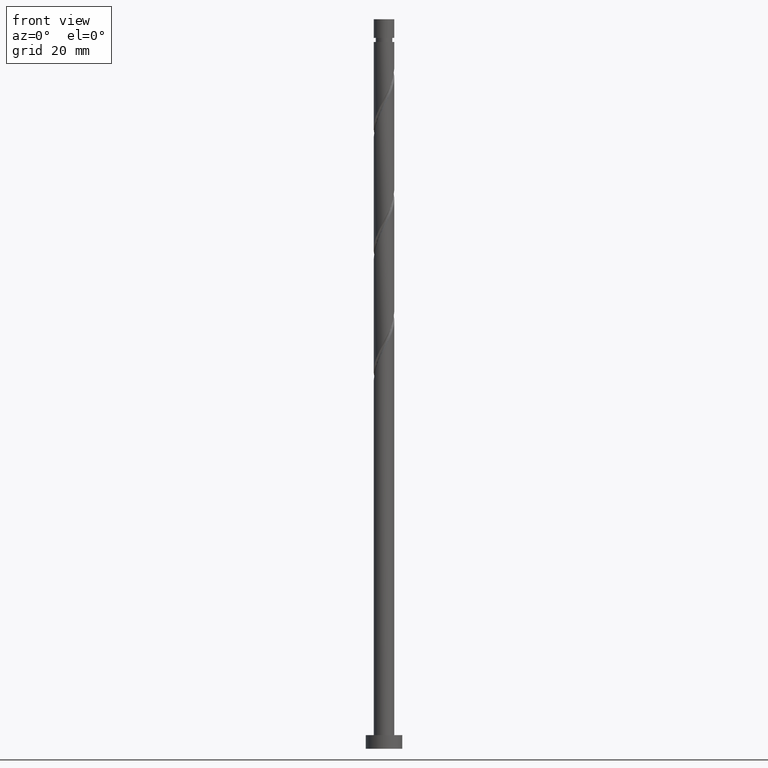
[diagram: clean part render]
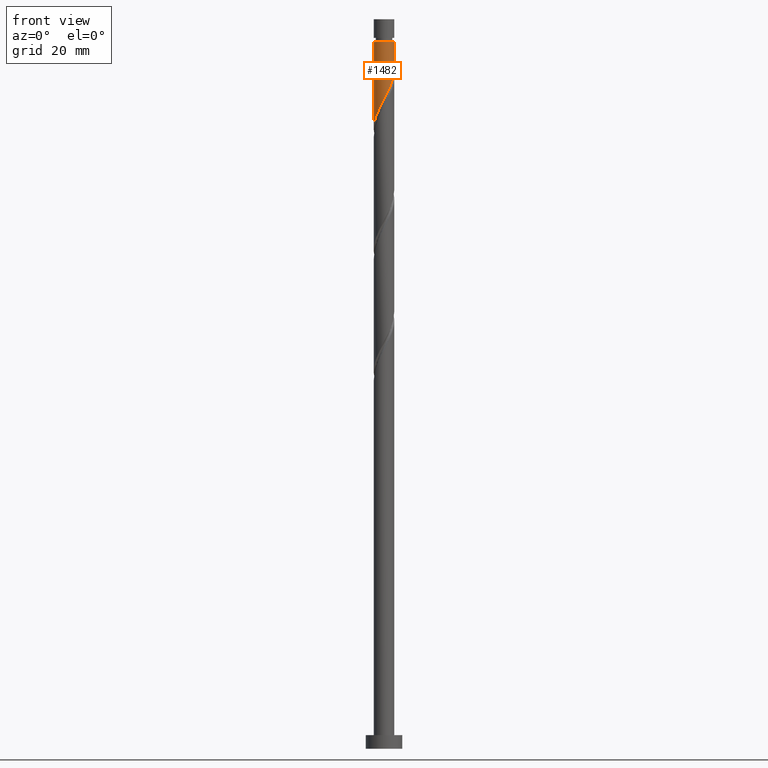
[diagram: same view with one face highlighted and labeled with its STEP entity id]
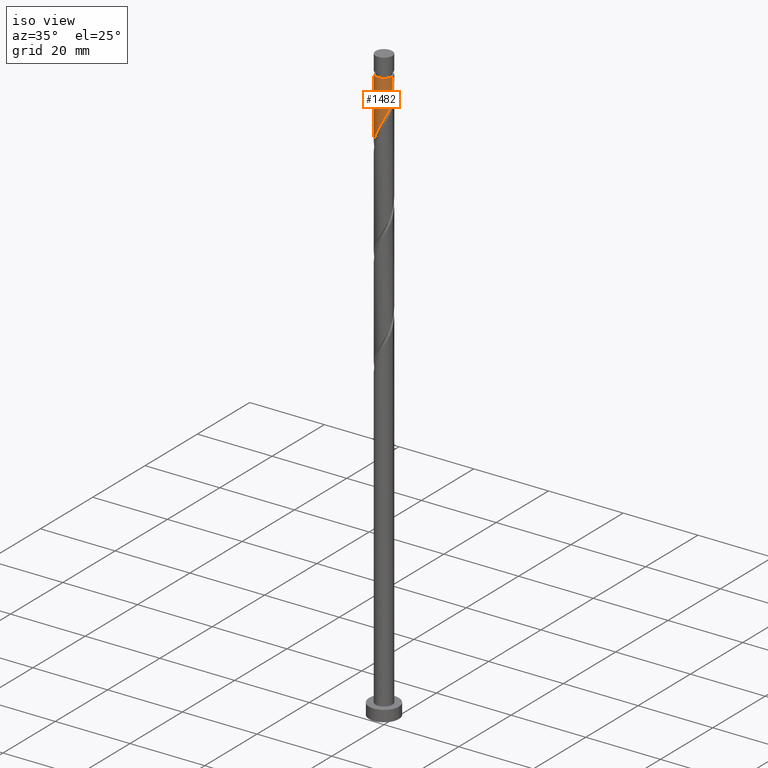
[diagram: same view with one face highlighted and labeled with its STEP entity id]
A machine part, front view. The second image highlights one B-rep face of the part: STEP entity #1482.
A second angle (iso view) of the same face is appended — the face is thin or edge-on in the first view.
In plain terms, the highlighted cylindrical surface (edge-blend (fillet) strip) has radius 2.25 mm, axis along (-0, -0, -1).
Its self-contained STEP definition (entity closure, byte-faithful):
#37 = CARTESIAN_POINT ( 'NONE',  ( 2.009996715602341943, -1.061633743224248194, 147.1307894824780362 ) ) ;
#42 = FACE_OUTER_BOUND ( 'NONE', #77, .T. ) ;
#50 = AXIS2_PLACEMENT_3D ( 'NONE', #424, #411, #930 ) ;
#71 = CARTESIAN_POINT ( 'NONE',  ( -1.050827842467677353, -1.989537847213448618, 140.4641228158113506 ) ) ;
#77 = EDGE_LOOP ( 'NONE', ( #1571, #620, #752, #599 ) ) ;
#103 = VERTEX_POINT ( 'NONE', #899 ) ;
#148 = CARTESIAN_POINT ( 'NONE',  ( 2.246276943635557188, -0.1293827364500373389, 148.9489713006598208 ) ) ;
#179 = DIRECTION ( 'NONE',  ( -0.000000000000000000, -0.000000000000000000, -1.000000000000000000 ) ) ;
#192 = CARTESIAN_POINT ( 'NONE',  ( -0.4477443466979799114, -2.204999999999999183, 141.6762440279325688 ) ) ;
#210 = CARTESIAN_POINT ( 'NONE',  ( -2.249999999999992450, 0.000000000000000000, 155.0095773612659116 ) ) ;
#213 = CIRCLE ( 'NONE', #50, 2.249999999999992450 ) ;
#219 = CARTESIAN_POINT ( 'NONE',  ( -2.250000000000000000, 1.189067245927961296E-14, 135.8590318405667858 ) ) ;
#247 = EDGE_CURVE ( 'NONE', #103, #526, #1304, .T. ) ;
#279 = CARTESIAN_POINT ( 'NONE',  ( 0.1916127332030267694, -2.241826166426483358, 142.8883652400537585 ) ) ;
#307 = DIRECTION ( 'NONE',  ( -0.000000000000000000, -0.000000000000000000, -1.000000000000000000 ) ) ;
#311 = CARTESIAN_POINT ( 'NONE',  ( -0.7647754849568959568, -2.140624081685869928, 141.0701834218720023 ) ) ;
#349 = EDGE_CURVE ( 'NONE', #1119, #1326, #1545, .T. ) ;
#403 = CARTESIAN_POINT ( 'NONE',  ( 0.8154464890247279385, -2.097032909502672737, 144.1004864521750051 ) ) ;
#411 = DIRECTION ( 'NONE',  ( -0.000000000000000000, -0.000000000000000000, -1.000000000000000000 ) ) ;
#424 = CARTESIAN_POINT ( 'NONE',  ( 0.000000000000000000, 0.000000000000000000, 155.0095773612659116 ) ) ;
#425 = CARTESIAN_POINT ( 'NONE',  ( 2.249999999999999556, -0.06474493467860559237, 149.0702671691819035 ) ) ;
#517 =( BOUNDED_CURVE ( )  B_SPLINE_CURVE ( 2, ( #694, #425, #148, #1561, #662, #37, #1165, #524, #1032, #1550, #403, #914, #279, #1308, #192, #311, #71, #575, #1201, #1601, #1358, #1224, #1607, #1502, #219 ),
 .UNSPECIFIED., .F., .T. ) 
 B_SPLINE_CURVE_WITH_KNOTS ( ( 3, 2, 2, 2, 2, 2, 2, 2, 2, 2, 2, 2, 3 ),
 ( 0.3045252162417514952, 0.3068181818181818232, 0.3181818181818181768, 0.3295454545454545303, 0.3409090909090908839, 0.3522727272727272929, 0.3636363636363636465, 0.3750000000000000000, 0.3863636363636363535, 0.3977272727272727071, 0.4090909090909091161, 0.4204545454545454697, 0.4295252162417517172 ),
 .UNSPECIFIED. ) 
 CURVE ( )  GEOMETRIC_REPRESENTATION_ITEM ( )  RATIONAL_B_SPLINE_CURVE ( ( 0.9061101570135630112, 0.9072237824201451195, 0.9090909090909224943, 0.8998376744372248437, 0.9090909090909224943, 0.8998376744372248437, 0.9090909090909224943, 0.8998376744372248437, 0.9090909090909224943, 0.8998376744372248437, 0.9090909090909224943, 0.8998376744372248437, 0.9090909090909224943, 0.8998376744372248437, 0.9090909090909224943, 0.8998376744372248437, 0.9090909090909224943, 0.8998376744372248437, 0.9090909090909224943, 0.8998376744372248437, 0.9090909090909224943, 0.8998376744372248437, 0.9090909090909224943, 0.9017048011080019965, 0.9061101570135632333 ) ) 
 REPRESENTATION_ITEM ( '' )  );
#524 = CARTESIAN_POINT ( 'NONE',  ( 1.629480936700959948, -1.584911631105247576, 145.9186682703567612 ) ) ;
#526 = VERTEX_POINT ( 'NONE', #1476 ) ;
#559 = CARTESIAN_POINT ( 'NONE',  ( 0.000000000000000000, 0.000000000000000000, 160.0000000000000000 ) ) ;
#575 = CARTESIAN_POINT ( 'NONE',  ( -1.336880199978459194, -1.838451612741027974, 139.8580622097507558 ) ) ;
#599 = ORIENTED_EDGE ( 'NONE', *, *, #849, .F. ) ;
#620 = ORIENTED_EDGE ( 'NONE', *, *, #1415, .T. ) ;
#662 = CARTESIAN_POINT ( 'NONE',  ( 2.118835615059355693, -0.7569911732352242462, 147.7368500885386879 ) ) ;
#694 = CARTESIAN_POINT ( 'NONE',  ( 2.250000000000000000, 2.393091312559419924E-16, 149.1923651739000718 ) ) ;
#752 = ORIENTED_EDGE ( 'NONE', *, *, #349, .T. ) ;
#785 = CARTESIAN_POINT ( 'NONE',  ( -2.250000000000000000, 1.189067245927961296E-14, 135.8590318405667858 ) ) ;
#817 = DIRECTION ( 'NONE',  ( -1.000000000000000000, 0.000000000000000000, 0.000000000000000000 ) ) ;
#835 = VECTOR ( 'NONE', #307, 1000.000000000000000 ) ;
#849 = EDGE_CURVE ( 'NONE', #526, #1326, #517, .T. ) ;
#899 = CARTESIAN_POINT ( 'NONE',  ( 2.249999999999992450, 2.755455298081539847E-16, 155.0095773612659116 ) ) ;
#914 = CARTESIAN_POINT ( 'NONE',  ( 0.5139386748451186815, -2.214276414538838278, 143.4944258461143818 ) ) ;
#930 = DIRECTION ( 'NONE',  ( -1.000000000000000000, 0.000000000000000000, 0.000000000000000000 ) ) ;
#945 = DIRECTION ( 'NONE',  ( -0.000000000000000000, -0.000000000000000000, -1.000000000000000000 ) ) ;
#1032 = CARTESIAN_POINT ( 'NONE',  ( 1.373217619952648016, -1.782350517785877164, 145.3126076642962232 ) ) ;
#1090 = CYLINDRICAL_SURFACE ( 'NONE', #1654, 2.250000000000000000 ) ;
#1119 = VERTEX_POINT ( 'NONE', #210 ) ;
#1165 = CARTESIAN_POINT ( 'NONE',  ( 1.819738826151650279, -1.323272687164747996, 146.5247288764174414 ) ) ;
#1188 = CARTESIAN_POINT ( 'NONE',  ( -2.250000000000000000, 0.000000000000000000, 160.0000000000000000 ) ) ;
#1201 = CARTESIAN_POINT ( 'NONE',  ( -1.568779515954457970, -1.612895170282835799, 139.2520016036901893 ) ) ;
#1224 = CARTESIAN_POINT ( 'NONE',  ( -2.118597173968805425, -0.8238319100010154106, 137.4338197855083195 ) ) ;
#1304 = LINE ( 'NONE', #1344, #1492 ) ;
#1308 = CARTESIAN_POINT ( 'NONE',  ( -0.1307132084390640325, -2.269375918314129770, 142.2823046339932205 ) ) ;
#1326 = VERTEX_POINT ( 'NONE', #785 ) ;
#1344 = CARTESIAN_POINT ( 'NONE',  ( 2.250000000000000000, 2.755455298081544285E-16, 160.0000000000000000 ) ) ;
#1358 = CARTESIAN_POINT ( 'NONE',  ( -1.959638002949630753, -1.105585318912829518, 138.0398803915689427 ) ) ;
#1415 = EDGE_CURVE ( 'NONE', #103, #1119, #213, .T. ) ;
#1476 = CARTESIAN_POINT ( 'NONE',  ( 2.250000000000000000, 2.393091312559419924E-16, 149.1923651739000718 ) ) ;
#1482 = ADVANCED_FACE ( 'NONE', ( #42 ), #1090, .T. ) ;
#1492 = VECTOR ( 'NONE', #179, 1000.000000000000000 ) ;
#1502 = CARTESIAN_POINT ( 'NONE',  ( -2.250000000000002220, -0.2576900866165156012, 136.3449917935380711 ) ) ;
#1545 = LINE ( 'NONE', #1188, #835 ) ;
#1550 = CARTESIAN_POINT ( 'NONE',  ( 1.116954303204337640, -1.979789404466506308, 144.7065470582355999 ) ) ;
#1561 = CARTESIAN_POINT ( 'NONE',  ( 2.227674514516368554, -0.4523486032462003537, 148.3429106945991975 ) ) ;
#1571 = ORIENTED_EDGE ( 'NONE', *, *, #247, .F. ) ;
#1601 = CARTESIAN_POINT ( 'NONE',  ( -1.800678831930455415, -1.387338727824644069, 138.6459409976295376 ) ) ;
#1607 = CARTESIAN_POINT ( 'NONE',  ( -2.191738273361774958, -0.5087075201735706820, 136.8277591794476962 ) ) ;
#1654 = AXIS2_PLACEMENT_3D ( 'NONE', #559, #945, #817 ) ;